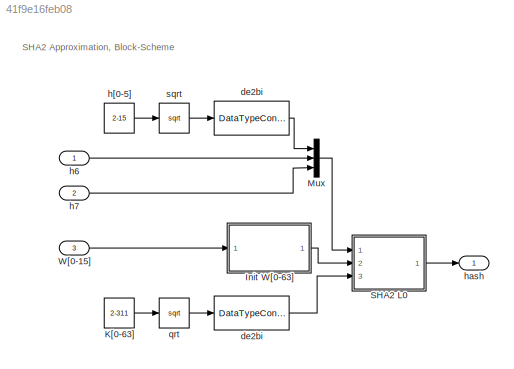
MODEL slx_41f9e16feb08
KIND model
CONFIG AbsTol = auto
CONFIG EnableMultiTasking = off
CONFIG FixedStep = auto
CONFIG MaxStep = auto
CONFIG MinStep = auto
CONFIG RelTol = 1e-3
CONFIG SampleTimeConstraint = Unconstrained
CONFIG Solver = VariableStepAuto
CONFIG SolverName = VariableStepAuto
CONFIG StartTime = 0.0
CONFIG StopTime = 10.0
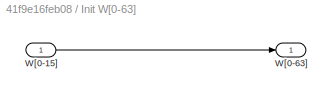
BLOCK [SubSystem] Init W[0-63]
  Ports = [1, 1]
  RequestExecContextInheritance = off
BLOCK [Inport] Init W[0-63]/W[0-15]
  IconDisplay = Port number
BLOCK [Outport] Init W[0-63]/W[0-63] 
  IconDisplay = Port number
BLOCK [Constant] K[0-63]
  Value = 2-311
BLOCK [Mux] Mux
  DisplayOption = bar
  Inputs = 3
  Ports = [3, 1]
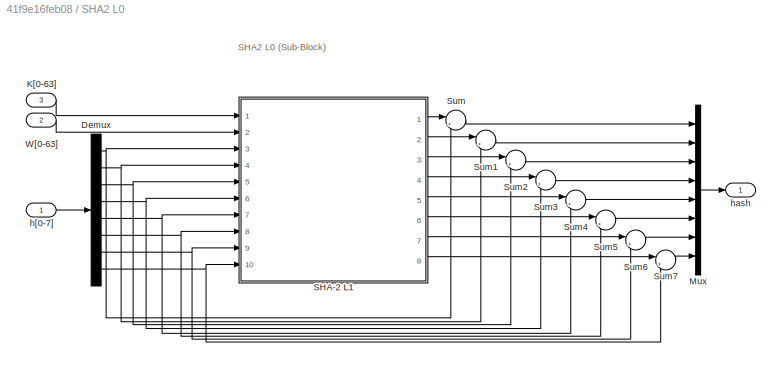
BLOCK [SubSystem] SHA2 L0
  Ports = [3, 1]
  RequestExecContextInheritance = off
BLOCK [Demux] SHA2 L0/Demux
  DisplayOption = bar
  Outputs = 8
  Ports = [1, 8]
BLOCK [Inport] SHA2 L0/K[0-63]
  IconDisplay = Port number
  Port = 3
BLOCK [Mux] SHA2 L0/Mux
  DisplayOption = bar
  Inputs = 8
  Ports = [8, 1]
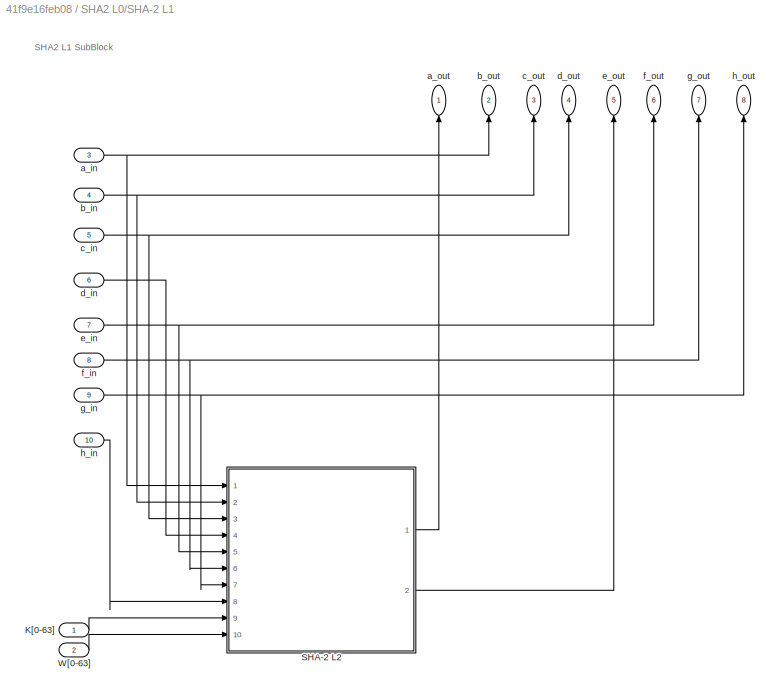
BLOCK [SubSystem] SHA2 L0/SHA-2 L1
  Ports = [10, 8]
  RequestExecContextInheritance = off
BLOCK [Inport] SHA2 L0/SHA-2 L1/K[0-63]
  IconDisplay = Port number
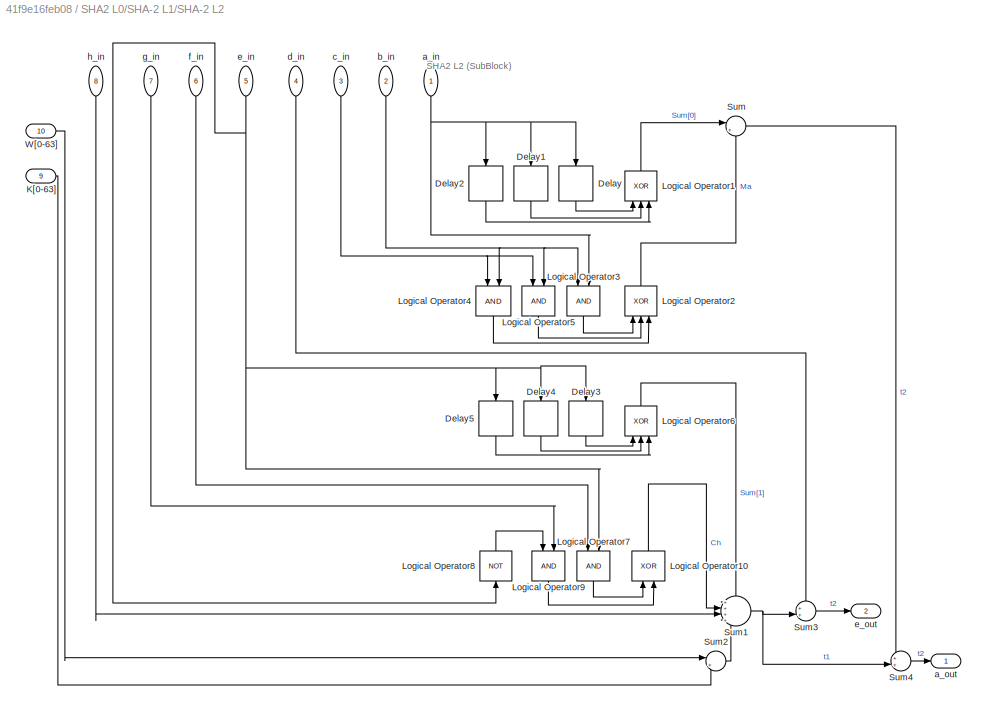
BLOCK [SubSystem] SHA2 L0/SHA-2 L1/SHA-2 L2
  Ports = [10, 2]
  RequestExecContextInheritance = off
BLOCK [Delay] SHA2 L0/SHA-2 L1/SHA-2 L2/Delay
  InputPortMap = u0
  Ports = [1, 1]
BLOCK [Delay] SHA2 L0/SHA-2 L1/SHA-2 L2/Delay1
  DelayLength = 13
  InputPortMap = u0
  Ports = [1, 1]
BLOCK [Delay] SHA2 L0/SHA-2 L1/SHA-2 L2/Delay2
  DelayLength = 22
  InputPortMap = u0
  Ports = [1, 1]
BLOCK [Delay] SHA2 L0/SHA-2 L1/SHA-2 L2/Delay3
  DelayLength = 6
  InputPortMap = u0
  Ports = [1, 1]
BLOCK [Delay] SHA2 L0/SHA-2 L1/SHA-2 L2/Delay4
  DelayLength = 11
  InputPortMap = u0
  Ports = [1, 1]
BLOCK [Delay] SHA2 L0/SHA-2 L1/SHA-2 L2/Delay5
  DelayLength = 25
  InputPortMap = u0
  Ports = [1, 1]
BLOCK [Inport] SHA2 L0/SHA-2 L1/SHA-2 L2/K[0-63]
  IconDisplay = Port number
  Port = 9
BLOCK [Logic] SHA2 L0/SHA-2 L1/SHA-2 L2/Logical Operator1
  AllPortsSameDT = off
  Inputs = 3
  Operator = XOR
  OutDataTypeStr = boolean
  Ports = [3, 1]
BLOCK [Logic] SHA2 L0/SHA-2 L1/SHA-2 L2/Logical Operator10
  AllPortsSameDT = off
  Operator = XOR
  OutDataTypeStr = boolean
  Ports = [2, 1]
BLOCK [Logic] SHA2 L0/SHA-2 L1/SHA-2 L2/Logical Operator2
  AllPortsSameDT = off
  Inputs = 3
  Operator = XOR
  OutDataTypeStr = boolean
  Ports = [3, 1]
BLOCK [Logic] SHA2 L0/SHA-2 L1/SHA-2 L2/Logical Operator3
  AllPortsSameDT = off
  OutDataTypeStr = boolean
  Ports = [2, 1]
BLOCK [Logic] SHA2 L0/SHA-2 L1/SHA-2 L2/Logical Operator4
  AllPortsSameDT = off
  OutDataTypeStr = boolean
  Ports = [2, 1]
BLOCK [Logic] SHA2 L0/SHA-2 L1/SHA-2 L2/Logical Operator5
  AllPortsSameDT = off
  OutDataTypeStr = boolean
  Ports = [2, 1]
BLOCK [Logic] SHA2 L0/SHA-2 L1/SHA-2 L2/Logical Operator6
  AllPortsSameDT = off
  Inputs = 3
  Operator = XOR
  OutDataTypeStr = boolean
  Ports = [3, 1]
BLOCK [Logic] SHA2 L0/SHA-2 L1/SHA-2 L2/Logical Operator7
  AllPortsSameDT = off
  OutDataTypeStr = boolean
  Ports = [2, 1]
BLOCK [Logic] SHA2 L0/SHA-2 L1/SHA-2 L2/Logical Operator8
  AllPortsSameDT = off
  Inputs = 3
  Operator = NOT
  OutDataTypeStr = boolean
  Ports = [1, 1]
BLOCK [Logic] SHA2 L0/SHA-2 L1/SHA-2 L2/Logical Operator9
  AllPortsSameDT = off
  OutDataTypeStr = boolean
  Ports = [2, 1]
BLOCK [Sum] SHA2 L0/SHA-2 L1/SHA-2 L2/Sum
  IconShape = round
  InputSameDT = off
  Inputs = |++
  OutDataTypeStr = Inherit: Inherit via internal rule
  Ports = [2, 1]
  SaturateOnIntegerOverflow = off
BLOCK [Sum] SHA2 L0/SHA-2 L1/SHA-2 L2/Sum1
  IconShape = round
  InputSameDT = off
  Inputs = ++++
  OutDataTypeStr = Inherit: Inherit via internal rule
  Ports = [4, 1]
  SaturateOnIntegerOverflow = off
BLOCK [Sum] SHA2 L0/SHA-2 L1/SHA-2 L2/Sum2
  IconShape = round
  InputSameDT = off
  Inputs = |++
  OutDataTypeStr = Inherit: Inherit via internal rule
  Ports = [2, 1]
  SaturateOnIntegerOverflow = off
BLOCK [Sum] SHA2 L0/SHA-2 L1/SHA-2 L2/Sum3
  IconShape = round
  InputSameDT = off
  Inputs = ++|
  OutDataTypeStr = Inherit: Inherit via internal rule
  Ports = [2, 1]
  SaturateOnIntegerOverflow = off
BLOCK [Sum] SHA2 L0/SHA-2 L1/SHA-2 L2/Sum4
  IconShape = round
  InputSameDT = off
  Inputs = ++|
  OutDataTypeStr = Inherit: Inherit via internal rule
  Ports = [2, 1]
  SaturateOnIntegerOverflow = off
BLOCK [Inport] SHA2 L0/SHA-2 L1/SHA-2 L2/W[0-63]
  IconDisplay = Port number
  Port = 10
BLOCK [Inport] SHA2 L0/SHA-2 L1/SHA-2 L2/a_in
  IconDisplay = Port number
BLOCK [Outport] SHA2 L0/SHA-2 L1/SHA-2 L2/a_out
  IconDisplay = Port number
BLOCK [Inport] SHA2 L0/SHA-2 L1/SHA-2 L2/b_in
  IconDisplay = Port number
  Port = 2
BLOCK [Inport] SHA2 L0/SHA-2 L1/SHA-2 L2/c_in
  IconDisplay = Port number
  Port = 3
BLOCK [Inport] SHA2 L0/SHA-2 L1/SHA-2 L2/d_in
  IconDisplay = Port number
  Port = 4
BLOCK [Inport] SHA2 L0/SHA-2 L1/SHA-2 L2/e_in
  IconDisplay = Port number
  Port = 5
BLOCK [Outport] SHA2 L0/SHA-2 L1/SHA-2 L2/e_out
  IconDisplay = Port number
  Port = 2
BLOCK [Inport] SHA2 L0/SHA-2 L1/SHA-2 L2/f_in
  IconDisplay = Port number
  Port = 6
BLOCK [Inport] SHA2 L0/SHA-2 L1/SHA-2 L2/g_in
  IconDisplay = Port number
  Port = 7
BLOCK [Inport] SHA2 L0/SHA-2 L1/SHA-2 L2/h_in
  IconDisplay = Port number
  Port = 8
BLOCK [Inport] SHA2 L0/SHA-2 L1/W[0-63]
  IconDisplay = Port number
  Port = 2
BLOCK [Inport] SHA2 L0/SHA-2 L1/a_in
  IconDisplay = Port number
  Port = 3
BLOCK [Outport] SHA2 L0/SHA-2 L1/a_out
  IconDisplay = Port number
BLOCK [Inport] SHA2 L0/SHA-2 L1/b_in
  IconDisplay = Port number
  Port = 4
BLOCK [Outport] SHA2 L0/SHA-2 L1/b_out
  IconDisplay = Port number
  Port = 2
BLOCK [Inport] SHA2 L0/SHA-2 L1/c_in
  IconDisplay = Port number
  Port = 5
BLOCK [Outport] SHA2 L0/SHA-2 L1/c_out
  IconDisplay = Port number
  Port = 3
BLOCK [Inport] SHA2 L0/SHA-2 L1/d_in
  IconDisplay = Port number
  Port = 6
BLOCK [Outport] SHA2 L0/SHA-2 L1/d_out
  IconDisplay = Port number
  Port = 4
BLOCK [Inport] SHA2 L0/SHA-2 L1/e_in
  IconDisplay = Port number
  Port = 7
BLOCK [Outport] SHA2 L0/SHA-2 L1/e_out
  IconDisplay = Port number
  Port = 5
BLOCK [Inport] SHA2 L0/SHA-2 L1/f_in
  IconDisplay = Port number
  Port = 8
BLOCK [Outport] SHA2 L0/SHA-2 L1/f_out
  IconDisplay = Port number
  Port = 6
BLOCK [Inport] SHA2 L0/SHA-2 L1/g_in
  IconDisplay = Port number
  Port = 9
BLOCK [Outport] SHA2 L0/SHA-2 L1/g_out
  IconDisplay = Port number
  Port = 7
BLOCK [Inport] SHA2 L0/SHA-2 L1/h_in
  IconDisplay = Port number
  Port = 10
BLOCK [Outport] SHA2 L0/SHA-2 L1/h_out
  IconDisplay = Port number
  Port = 8
BLOCK [Sum] SHA2 L0/Sum
  IconShape = round
  InputSameDT = off
  Inputs = |++
  OutDataTypeStr = Inherit: Inherit via internal rule
  Ports = [2, 1]
  SaturateOnIntegerOverflow = off
BLOCK [Sum] SHA2 L0/Sum1
  IconShape = round
  InputSameDT = off
  Inputs = |++
  OutDataTypeStr = Inherit: Inherit via internal rule
  Ports = [2, 1]
  SaturateOnIntegerOverflow = off
BLOCK [Sum] SHA2 L0/Sum2
  IconShape = round
  InputSameDT = off
  Inputs = |++
  OutDataTypeStr = Inherit: Inherit via internal rule
  Ports = [2, 1]
  SaturateOnIntegerOverflow = off
BLOCK [Sum] SHA2 L0/Sum3
  IconShape = round
  InputSameDT = off
  Inputs = |++
  OutDataTypeStr = Inherit: Inherit via internal rule
  Ports = [2, 1]
  SaturateOnIntegerOverflow = off
BLOCK [Sum] SHA2 L0/Sum4
  IconShape = round
  InputSameDT = off
  Inputs = |++
  OutDataTypeStr = Inherit: Inherit via internal rule
  Ports = [2, 1]
  SaturateOnIntegerOverflow = off
BLOCK [Sum] SHA2 L0/Sum5
  IconShape = round
  InputSameDT = off
  Inputs = |++
  OutDataTypeStr = Inherit: Inherit via internal rule
  Ports = [2, 1]
  SaturateOnIntegerOverflow = off
BLOCK [Sum] SHA2 L0/Sum6
  IconShape = round
  InputSameDT = off
  Inputs = |++
  OutDataTypeStr = Inherit: Inherit via internal rule
  Ports = [2, 1]
  SaturateOnIntegerOverflow = off
BLOCK [Sum] SHA2 L0/Sum7
  IconShape = round
  InputSameDT = off
  Inputs = |++
  OutDataTypeStr = Inherit: Inherit via internal rule
  Ports = [2, 1]
  SaturateOnIntegerOverflow = off
BLOCK [Inport] SHA2 L0/W[0-63]
  IconDisplay = Port number
  Port = 2
BLOCK [Inport] SHA2 L0/h[0-7]
  IconDisplay = Port number
BLOCK [Outport] SHA2 L0/hash
  IconDisplay = Port number
BLOCK [Inport] W[0-15]
  IconDisplay = Port number
  Port = 3
BLOCK [DataTypeConversion] de2bi
  RndMeth = Floor
  SaturateOnIntegerOverflow = off
BLOCK [DataTypeConversion] de2bi 
  RndMeth = Floor
  SaturateOnIntegerOverflow = off
BLOCK [Inport] h6
  IconDisplay = Port number
BLOCK [Inport] h7
  IconDisplay = Port number
  Port = 2
BLOCK [Constant] h[0-5]
  Value = 2-15
BLOCK [Outport] hash
  IconDisplay = Port number
BLOCK [Sqrt] qrt
BLOCK [Sqrt] sqrt
ANNOTATION (root): SHA2 Approximation, Block-Scheme
ANNOTATION SHA2 L0: SHA2 L0 (Sub-Block)
ANNOTATION SHA2 L0/SHA-2 L1: SHA2 L1 SubBlock
ANNOTATION SHA2 L0/SHA-2 L1/SHA-2 L2: SHA2 L2 (SubBlock)
LINE Init W[0-63]/W[0-15]:1 -> Init W[0-63]/W[0-63] :1
LINE Init W[0-63]:1 -> SHA2 L0:2
LINE K[0-63]:1 -> qrt:1
LINE Mux:1 -> SHA2 L0:1
NET SHA2 L0/Demux:1 -> SHA2 L0/SHA-2 L1:3, SHA2 L0/Sum:2
NET SHA2 L0/Demux:2 -> SHA2 L0/SHA-2 L1:4, SHA2 L0/Sum1:2
NET SHA2 L0/Demux:3 -> SHA2 L0/SHA-2 L1:5, SHA2 L0/Sum2:2
NET SHA2 L0/Demux:4 -> SHA2 L0/SHA-2 L1:6, SHA2 L0/Sum3:2
NET SHA2 L0/Demux:5 -> SHA2 L0/SHA-2 L1:7, SHA2 L0/Sum4:2
NET SHA2 L0/Demux:6 -> SHA2 L0/SHA-2 L1:8, SHA2 L0/Sum5:2
NET SHA2 L0/Demux:7 -> SHA2 L0/SHA-2 L1:9, SHA2 L0/Sum6:2
NET SHA2 L0/Demux:8 -> SHA2 L0/SHA-2 L1:10, SHA2 L0/Sum7:2
LINE SHA2 L0/K[0-63]:1 -> SHA2 L0/SHA-2 L1:1
LINE SHA2 L0/Mux:1 -> SHA2 L0/hash:1
LINE SHA2 L0/SHA-2 L1/K[0-63]:1 -> SHA2 L0/SHA-2 L1/SHA-2 L2:9
LINE SHA2 L0/SHA-2 L1/SHA-2 L2/Delay1:1 -> SHA2 L0/SHA-2 L1/SHA-2 L2/Logical Operator1:2
LINE SHA2 L0/SHA-2 L1/SHA-2 L2/Delay2:1 -> SHA2 L0/SHA-2 L1/SHA-2 L2/Logical Operator1:3
LINE SHA2 L0/SHA-2 L1/SHA-2 L2/Delay3:1 -> SHA2 L0/SHA-2 L1/SHA-2 L2/Logical Operator6:1
LINE SHA2 L0/SHA-2 L1/SHA-2 L2/Delay4:1 -> SHA2 L0/SHA-2 L1/SHA-2 L2/Logical Operator6:2
LINE SHA2 L0/SHA-2 L1/SHA-2 L2/Delay5:1 -> SHA2 L0/SHA-2 L1/SHA-2 L2/Logical Operator6:3
LINE SHA2 L0/SHA-2 L1/SHA-2 L2/Delay:1 -> SHA2 L0/SHA-2 L1/SHA-2 L2/Logical Operator1:1
LINE SHA2 L0/SHA-2 L1/SHA-2 L2/K[0-63]:1 -> SHA2 L0/SHA-2 L1/SHA-2 L2/Sum2:2
LINE SHA2 L0/SHA-2 L1/SHA-2 L2/Logical Operator10:1 -> SHA2 L0/SHA-2 L1/SHA-2 L2/Sum1:2
LINE SHA2 L0/SHA-2 L1/SHA-2 L2/Logical Operator1:1 -> SHA2 L0/SHA-2 L1/SHA-2 L2/Sum:1
LINE SHA2 L0/SHA-2 L1/SHA-2 L2/Logical Operator2:1 -> SHA2 L0/SHA-2 L1/SHA-2 L2/Sum:2
LINE SHA2 L0/SHA-2 L1/SHA-2 L2/Logical Operator3:1 -> SHA2 L0/SHA-2 L1/SHA-2 L2/Logical Operator2:1
LINE SHA2 L0/SHA-2 L1/SHA-2 L2/Logical Operator4:1 -> SHA2 L0/SHA-2 L1/SHA-2 L2/Logical Operator2:3
LINE SHA2 L0/SHA-2 L1/SHA-2 L2/Logical Operator5:1 -> SHA2 L0/SHA-2 L1/SHA-2 L2/Logical Operator2:2
LINE SHA2 L0/SHA-2 L1/SHA-2 L2/Logical Operator6:1 -> SHA2 L0/SHA-2 L1/SHA-2 L2/Sum1:1
LINE SHA2 L0/SHA-2 L1/SHA-2 L2/Logical Operator7:1 -> SHA2 L0/SHA-2 L1/SHA-2 L2/Logical Operator10:1
LINE SHA2 L0/SHA-2 L1/SHA-2 L2/Logical Operator8:1 -> SHA2 L0/SHA-2 L1/SHA-2 L2/Logical Operator9:1
LINE SHA2 L0/SHA-2 L1/SHA-2 L2/Logical Operator9:1 -> SHA2 L0/SHA-2 L1/SHA-2 L2/Logical Operator10:2
NET SHA2 L0/SHA-2 L1/SHA-2 L2/Sum1:1 -> SHA2 L0/SHA-2 L1/SHA-2 L2/Sum3:2, SHA2 L0/SHA-2 L1/SHA-2 L2/Sum4:2
LINE SHA2 L0/SHA-2 L1/SHA-2 L2/Sum2:1 -> SHA2 L0/SHA-2 L1/SHA-2 L2/Sum1:4
LINE SHA2 L0/SHA-2 L1/SHA-2 L2/Sum3:1 -> SHA2 L0/SHA-2 L1/SHA-2 L2/e_out:1
LINE SHA2 L0/SHA-2 L1/SHA-2 L2/Sum4:1 -> SHA2 L0/SHA-2 L1/SHA-2 L2/a_out:1
LINE SHA2 L0/SHA-2 L1/SHA-2 L2/Sum:1 -> SHA2 L0/SHA-2 L1/SHA-2 L2/Sum4:1
LINE SHA2 L0/SHA-2 L1/SHA-2 L2/W[0-63]:1 -> SHA2 L0/SHA-2 L1/SHA-2 L2/Sum2:1
NET SHA2 L0/SHA-2 L1/SHA-2 L2/a_in:1 -> SHA2 L0/SHA-2 L1/SHA-2 L2/Delay1:1, SHA2 L0/SHA-2 L1/SHA-2 L2/Delay2:1, SHA2 L0/SHA-2 L1/SHA-2 L2/Delay:1, SHA2 L0/SHA-2 L1/SHA-2 L2/Logical Operator3:2
NET SHA2 L0/SHA-2 L1/SHA-2 L2/b_in:1 -> SHA2 L0/SHA-2 L1/SHA-2 L2/Logical Operator3:1, SHA2 L0/SHA-2 L1/SHA-2 L2/Logical Operator4:2, SHA2 L0/SHA-2 L1/SHA-2 L2/Logical Operator5:2
NET SHA2 L0/SHA-2 L1/SHA-2 L2/c_in:1 -> SHA2 L0/SHA-2 L1/SHA-2 L2/Logical Operator4:1, SHA2 L0/SHA-2 L1/SHA-2 L2/Logical Operator5:1
LINE SHA2 L0/SHA-2 L1/SHA-2 L2/d_in:1 -> SHA2 L0/SHA-2 L1/SHA-2 L2/Sum3:1
NET SHA2 L0/SHA-2 L1/SHA-2 L2/e_in:1 -> SHA2 L0/SHA-2 L1/SHA-2 L2/Delay3:1, SHA2 L0/SHA-2 L1/SHA-2 L2/Delay4:1, SHA2 L0/SHA-2 L1/SHA-2 L2/Delay5:1, SHA2 L0/SHA-2 L1/SHA-2 L2/Logical Operator7:2, SHA2 L0/SHA-2 L1/SHA-2 L2/Logical Operator8:1
LINE SHA2 L0/SHA-2 L1/SHA-2 L2/f_in:1 -> SHA2 L0/SHA-2 L1/SHA-2 L2/Logical Operator7:1
LINE SHA2 L0/SHA-2 L1/SHA-2 L2/g_in:1 -> SHA2 L0/SHA-2 L1/SHA-2 L2/Logical Operator9:2
LINE SHA2 L0/SHA-2 L1/SHA-2 L2/h_in:1 -> SHA2 L0/SHA-2 L1/SHA-2 L2/Sum1:3
LINE SHA2 L0/SHA-2 L1/SHA-2 L2:1 -> SHA2 L0/SHA-2 L1/a_out:1
LINE SHA2 L0/SHA-2 L1/SHA-2 L2:2 -> SHA2 L0/SHA-2 L1/e_out:1
LINE SHA2 L0/SHA-2 L1/W[0-63]:1 -> SHA2 L0/SHA-2 L1/SHA-2 L2:10
NET SHA2 L0/SHA-2 L1/a_in:1 -> SHA2 L0/SHA-2 L1/SHA-2 L2:1, SHA2 L0/SHA-2 L1/b_out:1
NET SHA2 L0/SHA-2 L1/b_in:1 -> SHA2 L0/SHA-2 L1/SHA-2 L2:2, SHA2 L0/SHA-2 L1/c_out:1
NET SHA2 L0/SHA-2 L1/c_in:1 -> SHA2 L0/SHA-2 L1/SHA-2 L2:3, SHA2 L0/SHA-2 L1/d_out:1
LINE SHA2 L0/SHA-2 L1/d_in:1 -> SHA2 L0/SHA-2 L1/SHA-2 L2:4
NET SHA2 L0/SHA-2 L1/e_in:1 -> SHA2 L0/SHA-2 L1/SHA-2 L2:5, SHA2 L0/SHA-2 L1/f_out:1
NET SHA2 L0/SHA-2 L1/f_in:1 -> SHA2 L0/SHA-2 L1/SHA-2 L2:6, SHA2 L0/SHA-2 L1/g_out:1
NET SHA2 L0/SHA-2 L1/g_in:1 -> SHA2 L0/SHA-2 L1/SHA-2 L2:7, SHA2 L0/SHA-2 L1/h_out:1
LINE SHA2 L0/SHA-2 L1/h_in:1 -> SHA2 L0/SHA-2 L1/SHA-2 L2:8
LINE SHA2 L0/SHA-2 L1:1 -> SHA2 L0/Sum:1
LINE SHA2 L0/SHA-2 L1:2 -> SHA2 L0/Sum1:1
LINE SHA2 L0/SHA-2 L1:3 -> SHA2 L0/Sum2:1
LINE SHA2 L0/SHA-2 L1:4 -> SHA2 L0/Sum3:1
LINE SHA2 L0/SHA-2 L1:5 -> SHA2 L0/Sum4:1
LINE SHA2 L0/SHA-2 L1:6 -> SHA2 L0/Sum5:1
LINE SHA2 L0/SHA-2 L1:7 -> SHA2 L0/Sum6:1
LINE SHA2 L0/SHA-2 L1:8 -> SHA2 L0/Sum7:1
LINE SHA2 L0/Sum1:1 -> SHA2 L0/Mux:2
LINE SHA2 L0/Sum2:1 -> SHA2 L0/Mux:3
LINE SHA2 L0/Sum3:1 -> SHA2 L0/Mux:4
LINE SHA2 L0/Sum4:1 -> SHA2 L0/Mux:5
LINE SHA2 L0/Sum5:1 -> SHA2 L0/Mux:6
LINE SHA2 L0/Sum6:1 -> SHA2 L0/Mux:7
LINE SHA2 L0/Sum7:1 -> SHA2 L0/Mux:8
LINE SHA2 L0/Sum:1 -> SHA2 L0/Mux:1
LINE SHA2 L0/W[0-63]:1 -> SHA2 L0/SHA-2 L1:2
LINE SHA2 L0/h[0-7]:1 -> SHA2 L0/Demux:1
LINE SHA2 L0:1 -> hash:1
LINE W[0-15]:1 -> Init W[0-63]:1
LINE de2bi :1 -> SHA2 L0:3
LINE de2bi:1 -> Mux:1
LINE h6:1 -> Mux:2
LINE h7:1 -> Mux:3
LINE h[0-5]:1 -> sqrt:1
LINE qrt:1 -> de2bi :1
LINE sqrt:1 -> de2bi:1
note: NET lines group one-source signal fan-out (src -> all destinations, sorted); 1:1 wires keep LINE
